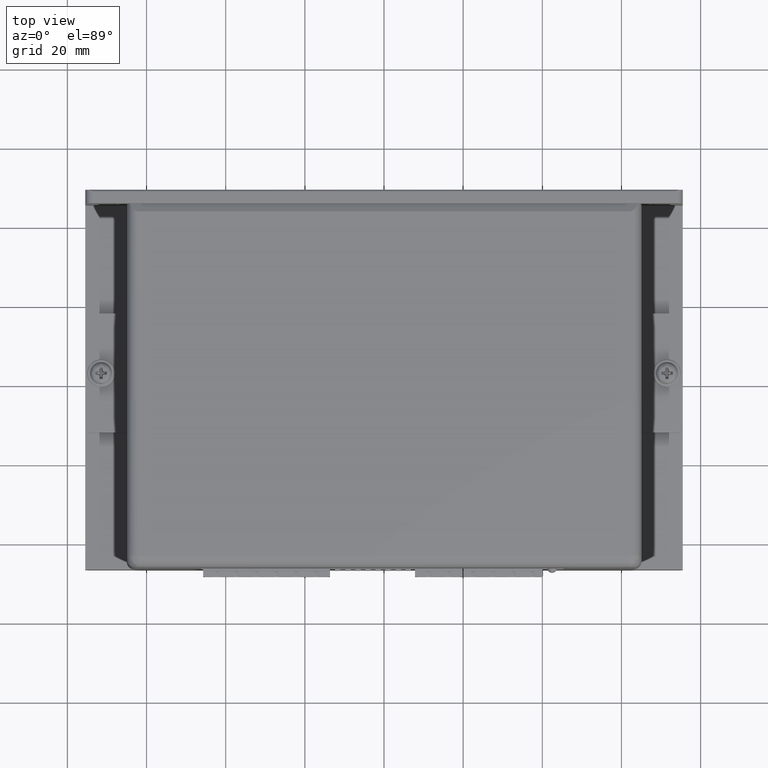
[diagram: clean part render]
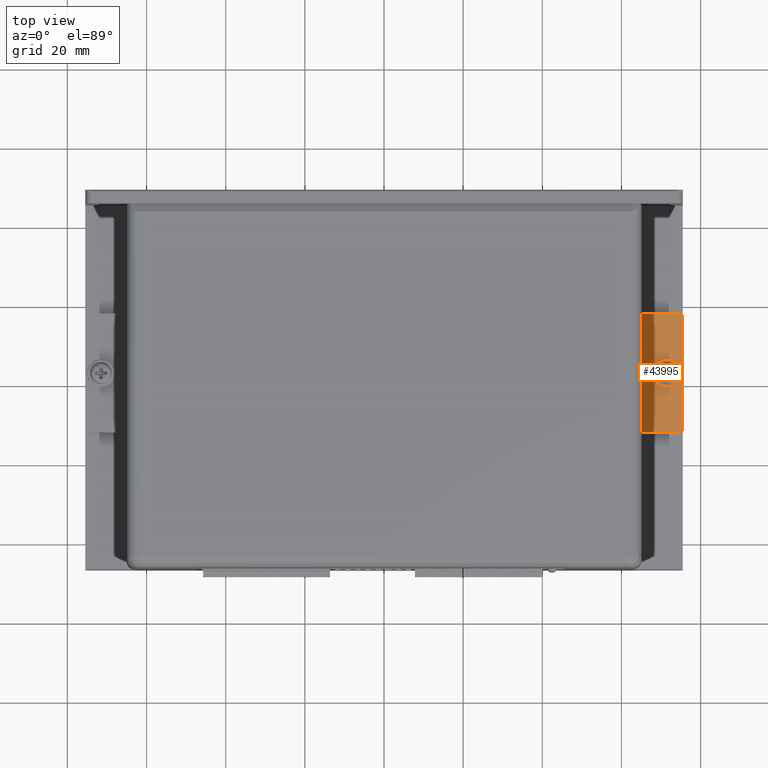
[diagram: same view with one face highlighted and labeled with its STEP entity id]
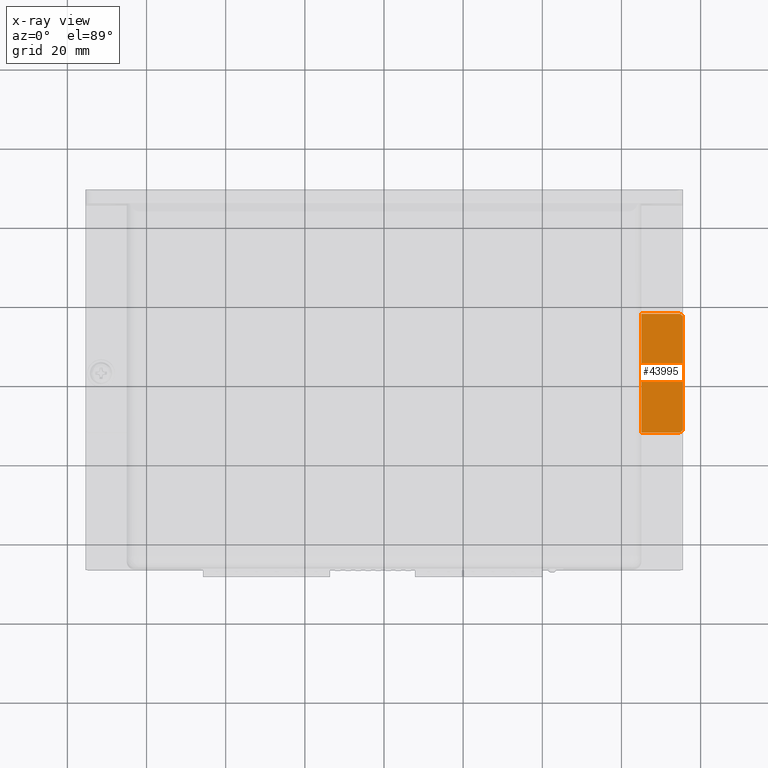
[diagram: x-ray of the same camera — body ghosted, the highlighted face saturated]
A machine part, top view. The second image highlights one B-rep face of the part: STEP entity #43995.
The next image is the same camera in x-ray: the body ghosted, the highlighted face saturated — about 0% of this face is hidden behind the body in this view.
In plain terms, the highlighted planar face has unit normal (0, 0, -1).
Its self-contained STEP definition (entity closure, byte-faithful):
#379 = EDGE_LOOP ( 'NONE', ( #55486, #50115, #2917, #24724, #54047, #24924 ) ) ;
#606 = CARTESIAN_POINT ( 'NONE',  ( 2.933070866141719500, 0.7125984251968211500, -1.141732283464630200 ) ) ;
#733 = LINE ( 'NONE', #41652, #2774 ) ;
#863 = VERTEX_POINT ( 'NONE', #6147 ) ;
#1106 = AXIS2_PLACEMENT_3D ( 'NONE', #12988, #17325, #34004 ) ;
#2774 = VECTOR ( 'NONE', #45974, 39.37007874015748100 ) ;
#2917 = ORIENTED_EDGE ( 'NONE', *, *, #47874, .F. ) ;
#4739 = DIRECTION ( 'NONE',  ( -0.0000000000000000000, -1.000000000000000000, -0.0000000000000000000 ) ) ;
#5299 = CIRCLE ( 'NONE', #42380, 0.03937007874015751400 ) ;
#5857 = EDGE_CURVE ( 'NONE', #35518, #51268, #25490, .T. ) ;
#5946 = CARTESIAN_POINT ( 'NONE',  ( 2.972440944881891600, -0.4291338582677460300, -1.141732283464592700 ) ) ;
#6147 = CARTESIAN_POINT ( 'NONE',  ( 2.814960629921262400, 0.2007874015747733200, -1.141732283464675700 ) ) ;
#6363 = CIRCLE ( 'NONE', #1106, 0.07874015748031448800 ) ;
#6929 = CARTESIAN_POINT ( 'NONE',  ( 2.559055118110237900, 1.862204724409419800, -1.141732283464597100 ) ) ;
#7967 = VERTEX_POINT ( 'NONE', #606 ) ;
#8287 = CARTESIAN_POINT ( 'NONE',  ( 2.559055118110237900, -0.4685039370079032700, -1.141732283464607800 ) ) ;
#8415 = CARTESIAN_POINT ( 'NONE',  ( 2.972440944881891600, 0.6732283464566636300, -1.141732283464608400 ) ) ;
#9315 = DIRECTION ( 'NONE',  ( 1.000000000000000000, -1.734723475976805700E-015, 0.0000000000000000000 ) ) ;
#9433 = CARTESIAN_POINT ( 'NONE',  ( 2.972440944881892000, -0.4921259842519978300, -1.141732283464567100 ) ) ;
#12090 = FACE_BOUND ( 'NONE', #36645, .T. ) ;
#12663 = CARTESIAN_POINT ( 'NONE',  ( 3.091338582677166900, -0.4921259842519978300, -1.141732283464567100 ) ) ;
#12731 = FACE_OUTER_BOUND ( 'NONE', #379, .T. ) ;
#12988 = CARTESIAN_POINT ( 'NONE',  ( 2.814960629921262400, 0.1220472440944588400, -1.141732283464675700 ) ) ;
#14079 = VECTOR ( 'NONE', #4739, 39.37007874015748100 ) ;
#14994 = EDGE_CURVE ( 'NONE', #51268, #32383, #22132, .T. ) ;
#16814 = DIRECTION ( 'NONE',  ( -1.000000000000000000, 0.0000000000000000000, -0.0000000000000000000 ) ) ;
#17219 = VERTEX_POINT ( 'NONE', #34822 ) ;
#17325 = DIRECTION ( 'NONE',  ( 1.880790961315682800E-031, -4.336808689942043900E-016, 1.000000000000000000 ) ) ;
#17581 = EDGE_CURVE ( 'NONE', #37287, #7967, #25709, .T. ) ;
#18169 = EDGE_CURVE ( 'NONE', #32383, #44628, #733, .T. ) ;
#21604 = CARTESIAN_POINT ( 'NONE',  ( 2.814960629921262400, 0.1220472440944588400, -1.141732283464675700 ) ) ;
#22132 = CIRCLE ( 'NONE', #37629, 0.03937007874015751400 ) ;
#22143 = AXIS2_PLACEMENT_3D ( 'NONE', #21604, #33828, #34021 ) ;
#23575 = VECTOR ( 'NONE', #36351, 39.37007874015748100 ) ;
#24724 = ORIENTED_EDGE ( 'NONE', *, *, #17581, .F. ) ;
#24924 = ORIENTED_EDGE ( 'NONE', *, *, #18169, .F. ) ;
#25225 = DIRECTION ( 'NONE',  ( 0.0000000000000000000, 0.0000000000000000000, -1.000000000000000000 ) ) ;
#25490 = LINE ( 'NONE', #9433, #14079 ) ;
#25631 = CARTESIAN_POINT ( 'NONE',  ( 2.933070866141717300, -0.4685039370079034400, -1.141732283464618000 ) ) ;
#25709 = LINE ( 'NONE', #29507, #53195 ) ;
#25771 = DIRECTION ( 'NONE',  ( 1.000000000000000000, 0.0000000000000000000, 0.0000000000000000000 ) ) ;
#26165 = CARTESIAN_POINT ( 'NONE',  ( 2.933070866141733700, -0.4291338582677459700, -1.141732283464618000 ) ) ;
#29507 = CARTESIAN_POINT ( 'NONE',  ( 2.550301486020080800, 0.7125984251968211500, -1.141732283464610600 ) ) ;
#32383 = VERTEX_POINT ( 'NONE', #25631 ) ;
#33250 = AXIS2_PLACEMENT_3D ( 'NONE', #12663, #25225, #16814 ) ;
#33828 = DIRECTION ( 'NONE',  ( 1.880790961315682800E-031, -4.336808689942043900E-016, 1.000000000000000000 ) ) ;
#34004 = DIRECTION ( 'NONE',  ( 0.0000000000000000000, -1.000000000000000000, 0.0000000000000000000 ) ) ;
#34021 = DIRECTION ( 'NONE',  ( 0.0000000000000000000, -1.000000000000000000, 0.0000000000000000000 ) ) ;
#34822 = CARTESIAN_POINT ( 'NONE',  ( 2.814960629921262400, 0.04330708661414434800, -1.141732283464675700 ) ) ;
#35518 = VERTEX_POINT ( 'NONE', #8415 ) ;
#36351 = DIRECTION ( 'NONE',  ( -0.0000000000000000000, 1.000000000000000000, 0.0000000000000000000 ) ) ;
#36645 = EDGE_LOOP ( 'NONE', ( #43577, #50207 ) ) ;
#37287 = VERTEX_POINT ( 'NONE', #37563 ) ;
#37563 = CARTESIAN_POINT ( 'NONE',  ( 2.559055118110237900, 0.7125984251968211500, -1.141732283464601800 ) ) ;
#37629 = AXIS2_PLACEMENT_3D ( 'NONE', #26165, #47759, #9315 ) ;
#40225 = CIRCLE ( 'NONE', #22143, 0.07874015748031448800 ) ;
#41652 = CARTESIAN_POINT ( 'NONE',  ( 2.941824498231891700, -0.4685039370079034400, -1.141732283464618000 ) ) ;
#42283 = DIRECTION ( 'NONE',  ( -0.0000000000000000000, 8.673617379884042400E-016, -1.000000000000000000 ) ) ;
#42380 = AXIS2_PLACEMENT_3D ( 'NONE', #50912, #42283, #46391 ) ;
#43577 = ORIENTED_EDGE ( 'NONE', *, *, #49761, .F. ) ;
#43995 = ADVANCED_FACE ( 'NONE', ( #12090, #12731 ), #46243, .F. ) ;
#44628 = VERTEX_POINT ( 'NONE', #8287 ) ;
#44995 = EDGE_CURVE ( 'NONE', #863, #17219, #40225, .T. ) ;
#45974 = DIRECTION ( 'NONE',  ( -1.000000000000000000, -0.0000000000000000000, -0.0000000000000000000 ) ) ;
#46243 = PLANE ( 'NONE',  #33250 ) ;
#46391 = DIRECTION ( 'NONE',  ( 0.0000000000000000000, -1.000000000000000000, 0.0000000000000000000 ) ) ;
#47759 = DIRECTION ( 'NONE',  ( 8.673617379884026600E-016, 1.203706215242018100E-029, -1.000000000000000000 ) ) ;
#47874 = EDGE_CURVE ( 'NONE', #7967, #35518, #5299, .T. ) ;
#49761 = EDGE_CURVE ( 'NONE', #17219, #863, #6363, .T. ) ;
#50115 = ORIENTED_EDGE ( 'NONE', *, *, #5857, .F. ) ;
#50207 = ORIENTED_EDGE ( 'NONE', *, *, #44995, .F. ) ;
#50486 = LINE ( 'NONE', #6929, #23575 ) ;
#50912 = CARTESIAN_POINT ( 'NONE',  ( 2.933070866141733700, 0.6732283464566636300, -1.141732283464649700 ) ) ;
#51268 = VERTEX_POINT ( 'NONE', #5946 ) ;
#53195 = VECTOR ( 'NONE', #25771, 39.37007874015748100 ) ;
#54047 = ORIENTED_EDGE ( 'NONE', *, *, #55110, .F. ) ;
#55110 = EDGE_CURVE ( 'NONE', #44628, #37287, #50486, .T. ) ;
#55486 = ORIENTED_EDGE ( 'NONE', *, *, #14994, .F. ) ;